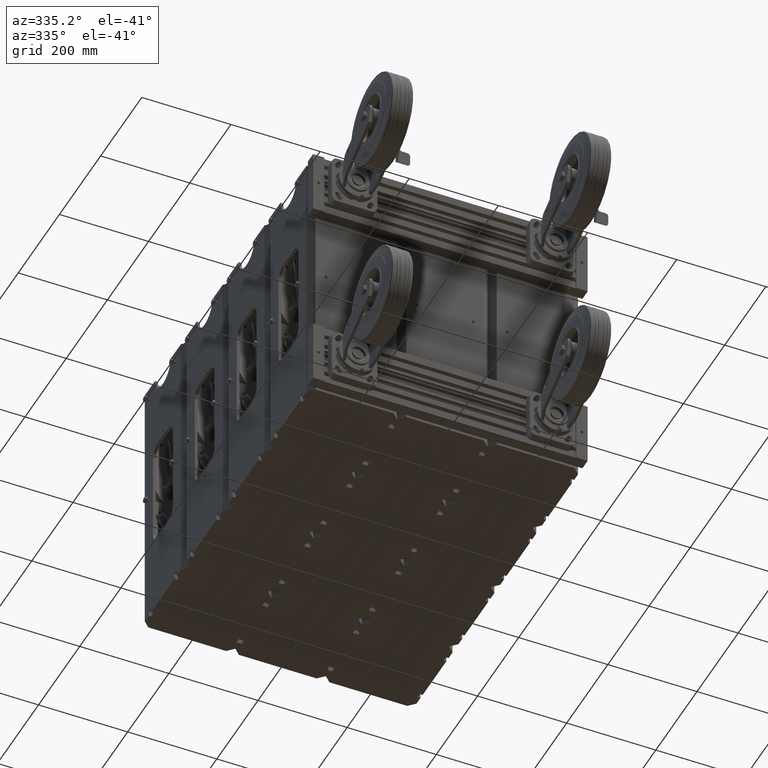
[diagram: clean part render]
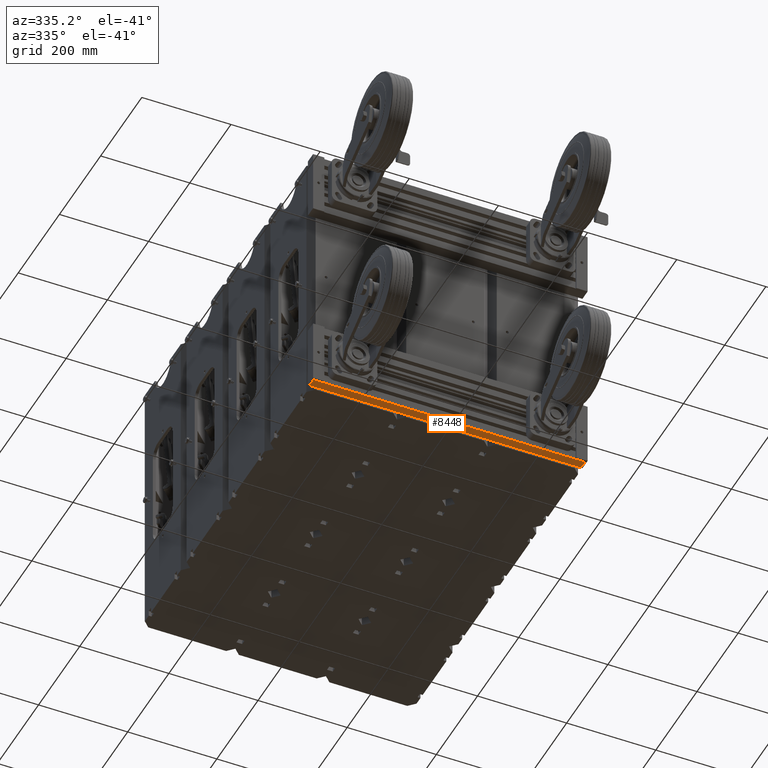
[diagram: same view with one face highlighted and labeled with its STEP entity id]
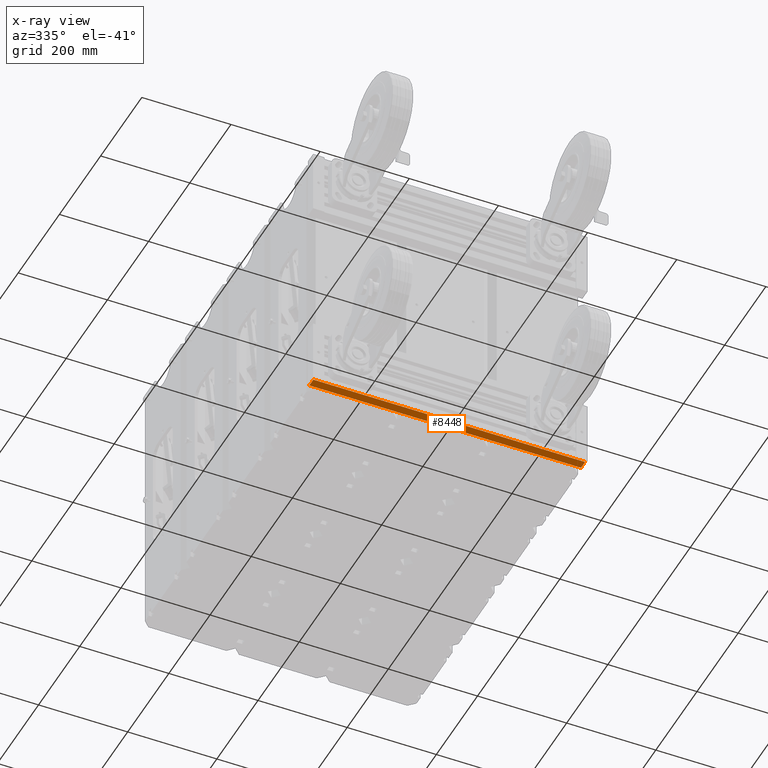
[diagram: x-ray of the same camera — body ghosted, the highlighted face saturated]
A machine part, auxiliary view. The second image highlights one B-rep face of the part: STEP entity #8448.
The next image is the same camera in x-ray: the body ghosted, the highlighted face saturated — about 0% of this face is hidden behind the body in this view.
In plain terms, the highlighted planar face has unit normal (0, 0, -1).
Its self-contained STEP definition (entity closure, byte-faithful):
#6962 = CARTESIAN_POINT ( 'NONE',  ( -2.864500000000020900, 0.0000000000000000000, 12.00000000000000200 ) ) ;
#6963 = CARTESIAN_POINT ( 'NONE',  ( -2.864500000000020900, 0.0000000000000000000, -12.00000000000000200 ) ) ;
#6964 = CARTESIAN_POINT ( 'NONE',  ( -2.864500000000020900, 0.7812500000000000000, 12.00000000000000200 ) ) ;
#6965 = CARTESIAN_POINT ( 'NONE',  ( -2.864500000000020900, 0.7812500000000000000, -12.00000000000000200 ) ) ;
#8448 = ADVANCED_FACE ( 'NONE', ( #28218 ), #29240, .T. ) ;
#9321 = EDGE_CURVE ( 'NONE', #22286, #22284, #33292, .T. ) ;
#9325 = EDGE_CURVE ( 'NONE', #22284, #22283, #33298, .T. ) ;
#9328 = EDGE_CURVE ( 'NONE', #22286, #22285, #33299, .T. ) ;
#9329 = EDGE_CURVE ( 'NONE', #22285, #22283, #33316, .T. ) ;
#18344 = ORIENTED_EDGE ( 'NONE', *, *, #9329, .F. ) ;
#18345 = ORIENTED_EDGE ( 'NONE', *, *, #9328, .F. ) ;
#18346 = ORIENTED_EDGE ( 'NONE', *, *, #9321, .T. ) ;
#18347 = ORIENTED_EDGE ( 'NONE', *, *, #9325, .T. ) ;
#21749 = EDGE_LOOP ( 'NONE', ( #18344, #18345, #18346, #18347 ) ) ;
#22283 = VERTEX_POINT ( 'NONE', #6962 ) ;
#22284 = VERTEX_POINT ( 'NONE', #6963 ) ;
#22285 = VERTEX_POINT ( 'NONE', #6964 ) ;
#22286 = VERTEX_POINT ( 'NONE', #6965 ) ;
#27112 = AXIS2_PLACEMENT_3D ( 'NONE', #29233, #29245, #29246 ) ;
#28218 = FACE_OUTER_BOUND ( 'NONE', #21749, .T. ) ;
#29233 = CARTESIAN_POINT ( 'NONE',  ( -2.864500000000020900, 0.0000000000000000000, -12.00000000000000200 ) ) ;
#29240 = PLANE ( 'NONE',  #27112 ) ;
#29245 = DIRECTION ( 'NONE',  ( -1.000000000000000000, 0.0000000000000000000, 0.0000000000000000000 ) ) ;
#29246 = DIRECTION ( 'NONE',  ( 0.0000000000000000000, 0.0000000000000000000, 1.000000000000000000 ) ) ;
#33288 = VECTOR ( 'NONE', #36089, 39.37007874015748100 ) ;
#33292 = LINE ( 'NONE', #36088, #33288 ) ;
#33298 = LINE ( 'NONE', #36090, #33308 ) ;
#33299 = LINE ( 'NONE', #36096, #33314 ) ;
#33308 = VECTOR ( 'NONE', #36097, 39.37007874015748100 ) ;
#33314 = VECTOR ( 'NONE', #36103, 39.37007874015748100 ) ;
#33316 = LINE ( 'NONE', #36104, #33317 ) ;
#33317 = VECTOR ( 'NONE', #36105, 39.37007874015748100 ) ;
#36088 = CARTESIAN_POINT ( 'NONE',  ( -2.864500000000020900, 0.0000000000000000000, -12.00000000000000200 ) ) ;
#36089 = DIRECTION ( 'NONE',  ( -0.0000000000000000000, -1.000000000000000000, -0.0000000000000000000 ) ) ;
#36090 = CARTESIAN_POINT ( 'NONE',  ( -2.864500000000020900, 0.0000000000000000000, -12.00000000000000200 ) ) ;
#36096 = CARTESIAN_POINT ( 'NONE',  ( -2.864500000000020900, 0.7812500000000000000, -12.00000000000000200 ) ) ;
#36097 = DIRECTION ( 'NONE',  ( 0.0000000000000000000, 0.0000000000000000000, 1.000000000000000000 ) ) ;
#36103 = DIRECTION ( 'NONE',  ( 0.0000000000000000000, 0.0000000000000000000, 1.000000000000000000 ) ) ;
#36104 = CARTESIAN_POINT ( 'NONE',  ( -2.864500000000020900, 0.0000000000000000000, 12.00000000000000200 ) ) ;
#36105 = DIRECTION ( 'NONE',  ( -0.0000000000000000000, -1.000000000000000000, -0.0000000000000000000 ) ) ;